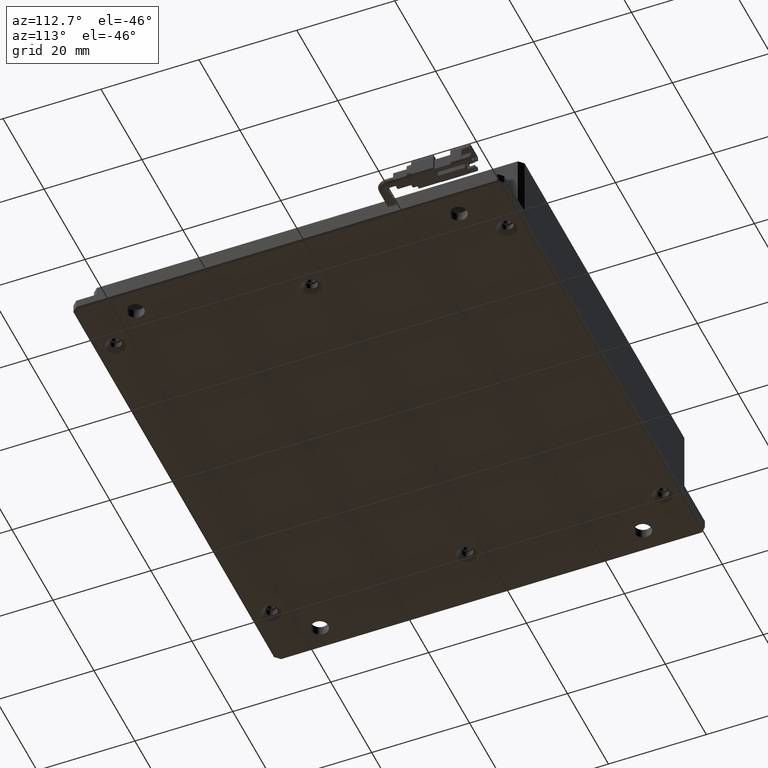
[diagram: clean part render]
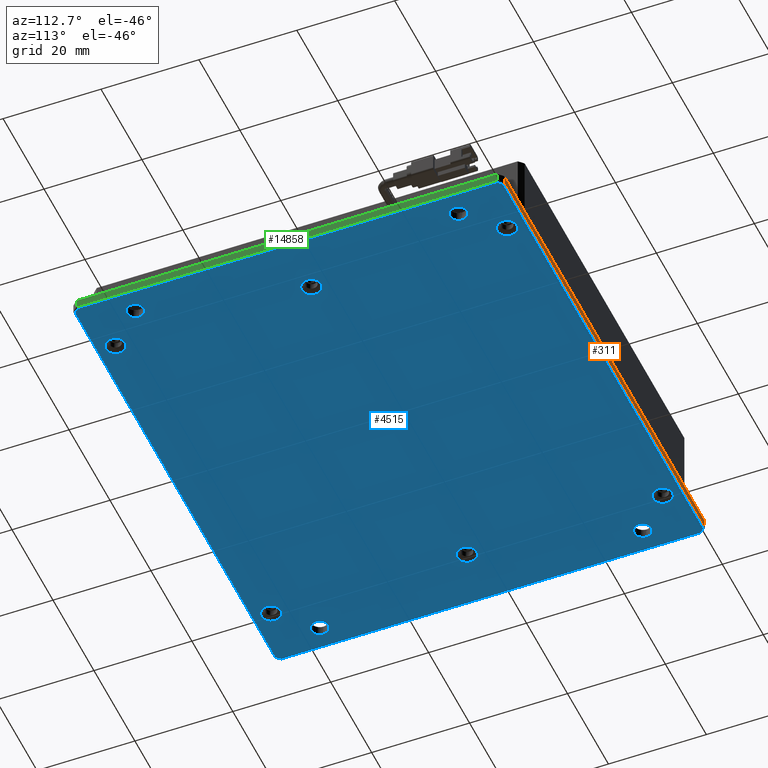
[diagram: same view with three faces highlighted in distinct colors, each labeled with its STEP entity id]
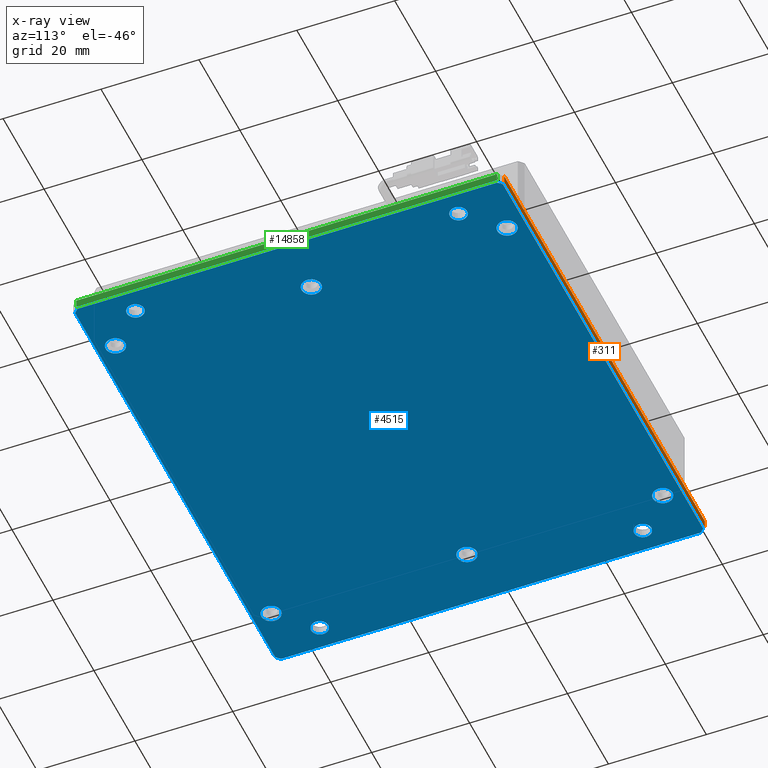
[diagram: x-ray of the same camera — body ghosted, the three highlighted faces saturated]
A machine part, auxiliary view with three faces highlighted in distinct colors.
The next image is the same camera in x-ray (body ghosted, the three faces saturated) — at least one of them is partly hidden behind the body in this view.
Their STEP definitions:

[orange] entity #311 — the highlighted planar face has unit normal (0, -1, 0).
#311 = ADVANCED_FACE ( 'NONE', ( #1137 ), #12971, .F. ) ;
#940 = CARTESIAN_POINT ( 'NONE',  ( -32.94768995799925900, 39.79992363497521500, -4.547577592273199800E-012 ) ) ;
#1137 = FACE_OUTER_BOUND ( 'NONE', #6369, .T. ) ;
#1222 = ORIENTED_EDGE ( 'NONE', *, *, #3665, .T. ) ;
#1947 = LINE ( 'NONE', #5270, #8857 ) ;
#2354 = CARTESIAN_POINT ( 'NONE',  ( -32.94768995799925900, 39.79992363497521500, -1.700000000004553000 ) ) ;
#2643 = DIRECTION ( 'NONE',  ( 0.0000000000000000000, -0.0000000000000000000, -1.000000000000000000 ) ) ;
#3665 = EDGE_CURVE ( 'NONE', #7176, #10799, #15093, .T. ) ;
#3750 = CARTESIAN_POINT ( 'NONE',  ( -32.94768995799925900, 39.79992363497521500, -4.547577592273199800E-012 ) ) ;
#3777 = DIRECTION ( 'NONE',  ( -0.0000000000000000000, -0.0000000000000000000, -1.000000000000000000 ) ) ;
#4901 = VECTOR ( 'NONE', #14723, 1000.000000000000000 ) ;
#5270 = CARTESIAN_POINT ( 'NONE',  ( -31.94768995799925900, 39.79992363497521500, -4.547577592273199800E-012 ) ) ;
#5284 = CARTESIAN_POINT ( 'NONE',  ( 66.05231004200074100, 39.79992363497521500, -1.700000000004552100 ) ) ;
#5477 = CARTESIAN_POINT ( 'NONE',  ( 66.05231004200074100, 39.79992363497522900, -4.547577592273199800E-012 ) ) ;
#6369 = EDGE_LOOP ( 'NONE', ( #10200, #14992, #16774, #1222 ) ) ;
#7176 = VERTEX_POINT ( 'NONE', #8342 ) ;
#7487 = EDGE_CURVE ( 'NONE', #15737, #7176, #11604, .T. ) ;
#8032 = VECTOR ( 'NONE', #13290, 1000.000000000000000 ) ;
#8342 = CARTESIAN_POINT ( 'NONE',  ( 66.05231004200076900, 39.79992363497521500, -4.547577592273199800E-012 ) ) ;
#8554 = LINE ( 'NONE', #2354, #4901 ) ;
#8857 = VECTOR ( 'NONE', #14717, 1000.000000000000000 ) ;
#10200 = ORIENTED_EDGE ( 'NONE', *, *, #16585, .F. ) ;
#10251 = AXIS2_PLACEMENT_3D ( 'NONE', #3750, #10858, #2643 ) ;
#10799 = VERTEX_POINT ( 'NONE', #5284 ) ;
#10858 = DIRECTION ( 'NONE',  ( 0.0000000000000000000, -1.000000000000000000, 0.0000000000000000000 ) ) ;
#11310 = EDGE_CURVE ( 'NONE', #15737, #15522, #1947, .T. ) ;
#11379 = CARTESIAN_POINT ( 'NONE',  ( -31.94768995799925900, 39.79992363497521500, -4.547577592273199800E-012 ) ) ;
#11485 = VECTOR ( 'NONE', #3777, 1000.000000000000000 ) ;
#11604 = LINE ( 'NONE', #940, #8032 ) ;
#12177 = CARTESIAN_POINT ( 'NONE',  ( -31.94768995799925900, 39.79992363497521500, -1.700000000004553400 ) ) ;
#12971 = PLANE ( 'NONE',  #10251 ) ;
#13290 = DIRECTION ( 'NONE',  ( 1.000000000000000000, -0.0000000000000000000, 0.0000000000000000000 ) ) ;
#14717 = DIRECTION ( 'NONE',  ( 0.0000000000000000000, -0.0000000000000000000, -1.000000000000000000 ) ) ;
#14723 = DIRECTION ( 'NONE',  ( 1.000000000000000000, 0.0000000000000000000, 0.0000000000000000000 ) ) ;
#14992 = ORIENTED_EDGE ( 'NONE', *, *, #11310, .F. ) ;
#15093 = LINE ( 'NONE', #5477, #11485 ) ;
#15522 = VERTEX_POINT ( 'NONE', #12177 ) ;
#15737 = VERTEX_POINT ( 'NONE', #11379 ) ;
#16585 = EDGE_CURVE ( 'NONE', #15522, #10799, #8554, .T. ) ;
#16774 = ORIENTED_EDGE ( 'NONE', *, *, #7487, .T. ) ;

[blue] entity #4515 — the highlighted planar face has unit normal (0, 0, -1).
#34 = AXIS2_PLACEMENT_3D ( 'NONE', #5235, #14740, #6628 ) ;
#72 = EDGE_CURVE ( 'NONE', #14501, #15963, #12541, .T. ) ;
#98 = CARTESIAN_POINT ( 'NONE',  ( 53.05231004207031700, -44.20007636502478500, -1.999999999947704300 ) ) ;
#118 = VERTEX_POINT ( 'NONE', #13329 ) ;
#361 = DIRECTION ( 'NONE',  ( -0.7071067811865535700, 0.7071067811865415800, -1.488157472718155900E-014 ) ) ;
#376 = LINE ( 'NONE', #1794, #7359 ) ;
#442 = CARTESIAN_POINT ( 'NONE',  ( -31.82342588928733200, -47.90007636502477300, -2.000000000004545700 ) ) ;
#498 = EDGE_CURVE ( 'NONE', #118, #3270, #16937, .T. ) ;
#502 = ORIENTED_EDGE ( 'NONE', *, *, #15474, .T. ) ;
#505 = CARTESIAN_POINT ( 'NONE',  ( 53.05231004207031700, 35.79992363497522200, -1.999999999947704300 ) ) ;
#593 = ORIENTED_EDGE ( 'NONE', *, *, #15857, .T. ) ;
#642 = DIRECTION ( 'NONE',  ( -1.000000000000000000, 0.0000000000000000000, 0.0000000000000000000 ) ) ;
#750 = VERTEX_POINT ( 'NONE', #6751 ) ;
#773 = CARTESIAN_POINT ( 'NONE',  ( 55.05231004200073400, -44.20007636502478500, -1.999999999947704300 ) ) ;
#820 = EDGE_CURVE ( 'NONE', #3225, #12565, #11738, .T. ) ;
#822 = DIRECTION ( 'NONE',  ( -0.0000000000000000000, -0.0000000000000000000, 1.000000000000000000 ) ) ;
#834 = CARTESIAN_POINT ( 'NONE',  ( 55.05231004200073400, 35.79992363497522200, -1.999999999947704300 ) ) ;
#909 = CARTESIAN_POINT ( 'NONE',  ( -29.69768995799926600, 28.79992363497522900, -2.000000000004547500 ) ) ;
#987 = DIRECTION ( 'NONE',  ( -1.000000000000000000, 0.0000000000000000000, -0.0000000000000000000 ) ) ;
#1045 = CARTESIAN_POINT ( 'NONE',  ( 57.05231004193115800, 35.79992363497522200, -1.999999999947704300 ) ) ;
#1066 = CARTESIAN_POINT ( 'NONE',  ( -27.94768995799927000, 28.79992363497522900, -2.000000000004547500 ) ) ;
#1072 = CARTESIAN_POINT ( 'NONE',  ( -31.82342588928733200, 39.49992363497520400, -2.000000000004547900 ) ) ;
#1114 = FACE_BOUND ( 'NONE', #8154, .T. ) ;
#1139 = CIRCLE ( 'NONE', #9918, 1.999999999930418500 ) ;
#1223 = EDGE_CURVE ( 'NONE', #2054, #12436, #16590, .T. ) ;
#1283 = VECTOR ( 'NONE', #1927, 1000.000000000000000 ) ;
#1313 = AXIS2_PLACEMENT_3D ( 'NONE', #12843, #4666, #14183 ) ;
#1390 = VERTEX_POINT ( 'NONE', #8864 ) ;
#1532 = AXIS2_PLACEMENT_3D ( 'NONE', #15979, #7873, #17328 ) ;
#1591 = CIRCLE ( 'NONE', #16399, 2.000000000009098500 ) ;
#1656 = VERTEX_POINT ( 'NONE', #1045 ) ;
#1794 = CARTESIAN_POINT ( 'NONE',  ( 66.75231004200074400, 38.67565956626328500, -2.000000000004523500 ) ) ;
#1927 = DIRECTION ( 'NONE',  ( 0.7071067811865567900, 0.7071067811865383600, 5.952629890872349900E-015 ) ) ;
#1943 = ORIENTED_EDGE ( 'NONE', *, *, #12255, .T. ) ;
#1982 = CARTESIAN_POINT ( 'NONE',  ( -18.94768995799015700, -44.20007636502478500, -2.000000000004547500 ) ) ;
#2054 = VERTEX_POINT ( 'NONE', #8207 ) ;
#2070 = EDGE_CURVE ( 'NONE', #11036, #4027, #3736, .T. ) ;
#2161 = CIRCLE ( 'NONE', #10544, 1.749999999999998000 ) ;
#2168 = DIRECTION ( 'NONE',  ( -1.000000000000000000, 0.0000000000000000000, 0.0000000000000000000 ) ) ;
#2234 = EDGE_CURVE ( 'NONE', #8017, #3448, #1591, .T. ) ;
#2436 = ORIENTED_EDGE ( 'NONE', *, *, #10452, .T. ) ;
#2443 = DIRECTION ( 'NONE',  ( -1.000000000000000000, 0.0000000000000000000, 0.0000000000000000000 ) ) ;
#2531 = VECTOR ( 'NONE', #14916, 1000.000000000000000 ) ;
#2705 = CARTESIAN_POINT ( 'NONE',  ( 55.05231004200073400, -44.20007636502478500, -1.999999999947704300 ) ) ;
#2714 = EDGE_CURVE ( 'NONE', #3270, #118, #13909, .T. ) ;
#2746 = CIRCLE ( 'NONE', #16473, 2.000000000009098500 ) ;
#3004 = EDGE_CURVE ( 'NONE', #5076, #3769, #15367, .T. ) ;
#3104 = CARTESIAN_POINT ( 'NONE',  ( 63.80231004200073400, -37.20007636502477100, -2.000000000004547500 ) ) ;
#3183 = EDGE_LOOP ( 'NONE', ( #5894, #2436 ) ) ;
#3225 = VERTEX_POINT ( 'NONE', #3679 ) ;
#3270 = VERTEX_POINT ( 'NONE', #5974 ) ;
#3417 = DIRECTION ( 'NONE',  ( -1.000000000000000000, 0.0000000000000000000, -0.0000000000000000000 ) ) ;
#3431 = EDGE_LOOP ( 'NONE', ( #4643, #1943 ) ) ;
#3433 = DIRECTION ( 'NONE',  ( -1.000000000000000000, 0.0000000000000000000, 0.0000000000000000000 ) ) ;
#3448 = VERTEX_POINT ( 'NONE', #1982 ) ;
#3500 = EDGE_CURVE ( 'NONE', #3720, #1656, #14691, .T. ) ;
#3545 = DIRECTION ( 'NONE',  ( -0.0000000000000000000, -0.0000000000000000000, 1.000000000000000000 ) ) ;
#3550 = DIRECTION ( 'NONE',  ( -0.0000000000000000000, -0.0000000000000000000, 1.000000000000000000 ) ) ;
#3612 = CARTESIAN_POINT ( 'NONE',  ( -20.94768995799925200, -4.200076365024784800, -2.000000000004547500 ) ) ;
#3679 = CARTESIAN_POINT ( 'NONE',  ( 65.92804597328883200, 39.49992363497520400, -2.000000000004545700 ) ) ;
#3720 = VERTEX_POINT ( 'NONE', #505 ) ;
#3736 = LINE ( 'NONE', #8585, #17397 ) ;
#3769 = VERTEX_POINT ( 'NONE', #6821 ) ;
#4027 = VERTEX_POINT ( 'NONE', #10135 ) ;
#4101 = DIRECTION ( 'NONE',  ( -1.000000000000000000, 0.0000000000000000000, 0.0000000000000000000 ) ) ;
#4108 = CARTESIAN_POINT ( 'NONE',  ( 66.75231004200074400, -48.20007636502478500, -2.000000000004544400 ) ) ;
#4368 = FACE_OUTER_BOUND ( 'NONE', #7426, .T. ) ;
#4462 = CARTESIAN_POINT ( 'NONE',  ( 57.05231004193115800, -44.20007636502478500, -1.999999999947704300 ) ) ;
#4515 = ADVANCED_FACE ( 'NONE', ( #5253, #15670, #12507, #12085, #8480, #4812, #1114, #15236, #11633, #8055, #4368 ), #5505, .T. ) ;
#4643 = ORIENTED_EDGE ( 'NONE', *, *, #3500, .T. ) ;
#4666 = DIRECTION ( 'NONE',  ( -0.0000000000000000000, -0.0000000000000000000, 1.000000000000000000 ) ) ;
#4812 = FACE_BOUND ( 'NONE', #3431, .T. ) ;
#4881 = CARTESIAN_POINT ( 'NONE',  ( -20.94768995799925500, 35.79992363497520800, -2.000000000004547500 ) ) ;
#4886 = AXIS2_PLACEMENT_3D ( 'NONE', #6408, #6229, #6168 ) ;
#4949 = ORIENTED_EDGE ( 'NONE', *, *, #8103, .F. ) ;
#4977 = LINE ( 'NONE', #7444, #1283 ) ;
#5076 = VERTEX_POINT ( 'NONE', #3104 ) ;
#5216 = VERTEX_POINT ( 'NONE', #98 ) ;
#5235 = CARTESIAN_POINT ( 'NONE',  ( -20.94768995799925500, 35.79992363497520800, -2.000000000004547500 ) ) ;
#5253 = FACE_BOUND ( 'NONE', #9219, .T. ) ;
#5325 = VERTEX_POINT ( 'NONE', #17124 ) ;
#5342 = EDGE_CURVE ( 'NONE', #3769, #5076, #11368, .T. ) ;
#5345 = ORIENTED_EDGE ( 'NONE', *, *, #8532, .T. ) ;
#5399 = ORIENTED_EDGE ( 'NONE', *, *, #17197, .T. ) ;
#5439 = VERTEX_POINT ( 'NONE', #13333 ) ;
#5505 = PLANE ( 'NONE',  #13150 ) ;
#5894 = ORIENTED_EDGE ( 'NONE', *, *, #2234, .T. ) ;
#5974 = CARTESIAN_POINT ( 'NONE',  ( -18.94768995799015000, -4.200076365024784800, -2.000000000004547500 ) ) ;
#6033 = DIRECTION ( 'NONE',  ( -0.0000000000000000000, -0.0000000000000000000, 1.000000000000000000 ) ) ;
#6041 = LINE ( 'NONE', #4108, #9247 ) ;
#6168 = DIRECTION ( 'NONE',  ( -1.000000000000000000, 0.0000000000000000000, 0.0000000000000000000 ) ) ;
#6186 = CIRCLE ( 'NONE', #16371, 1.749999999999998000 ) ;
#6229 = DIRECTION ( 'NONE',  ( 0.0000000000000000000, 0.0000000000000000000, 1.000000000000000000 ) ) ;
#6256 = LINE ( 'NONE', #13564, #2531 ) ;
#6293 = DIRECTION ( 'NONE',  ( -0.0000000000000000000, -0.0000000000000000000, 1.000000000000000000 ) ) ;
#6299 = DIRECTION ( 'NONE',  ( -1.000000000000000000, 0.0000000000000000000, 0.0000000000000000000 ) ) ;
#6408 = CARTESIAN_POINT ( 'NONE',  ( -27.94768995799929100, -37.20007636502477100, -2.000000000004547500 ) ) ;
#6615 = ORIENTED_EDGE ( 'NONE', *, *, #72, .T. ) ;
#6628 = DIRECTION ( 'NONE',  ( -1.000000000000000000, 0.0000000000000000000, 0.0000000000000000000 ) ) ;
#6654 = EDGE_LOOP ( 'NONE', ( #16342, #16207 ) ) ;
#6751 = CARTESIAN_POINT ( 'NONE',  ( -32.64768995799924800, 38.67565956626331300, -2.000000000004545700 ) ) ;
#6821 = CARTESIAN_POINT ( 'NONE',  ( 60.30231004200072700, -37.20007636502477100, -2.000000000004547500 ) ) ;
#6903 = CARTESIAN_POINT ( 'NONE',  ( -32.64768995799924800, -47.07581229631284700, -2.000000000004546600 ) ) ;
#6930 = DIRECTION ( 'NONE',  ( 0.0000000000000000000, 0.0000000000000000000, 1.000000000000000000 ) ) ;
#7070 = CARTESIAN_POINT ( 'NONE',  ( 55.05231004200073400, -4.200076365024784800, -1.999999999947704300 ) ) ;
#7125 = CIRCLE ( 'NONE', #9540, 1.999999999930418500 ) ;
#7324 = AXIS2_PLACEMENT_3D ( 'NONE', #13374, #13528, #13667 ) ;
#7359 = VECTOR ( 'NONE', #361, 999.9999999999998900 ) ;
#7426 = EDGE_LOOP ( 'NONE', ( #9639, #10405, #8341, #12566, #17026, #8449, #17694, #4949 ) ) ;
#7444 = CARTESIAN_POINT ( 'NONE',  ( 65.92804597328880300, -47.90007636502478100, -2.000000000004551000 ) ) ;
#7776 = EDGE_CURVE ( 'NONE', #4027, #10832, #4977, .T. ) ;
#7790 = DIRECTION ( 'NONE',  ( 0.0000000000000000000, 0.0000000000000000000, 1.000000000000000000 ) ) ;
#7799 = VERTEX_POINT ( 'NONE', #11579 ) ;
#7873 = DIRECTION ( 'NONE',  ( 0.0000000000000000000, 0.0000000000000000000, 1.000000000000000000 ) ) ;
#7886 = CARTESIAN_POINT ( 'NONE',  ( -27.94768995799927000, 28.79992363497522900, -2.000000000004547500 ) ) ;
#7943 = CIRCLE ( 'NONE', #11894, 1.999999999930418500 ) ;
#8006 = ORIENTED_EDGE ( 'NONE', *, *, #5342, .T. ) ;
#8017 = VERTEX_POINT ( 'NONE', #9236 ) ;
#8055 = FACE_BOUND ( 'NONE', #10652, .T. ) ;
#8103 = EDGE_CURVE ( 'NONE', #12565, #750, #13487, .T. ) ;
#8147 = VECTOR ( 'NONE', #987, 1000.000000000000000 ) ;
#8154 = EDGE_LOOP ( 'NONE', ( #14756, #9394 ) ) ;
#8207 = CARTESIAN_POINT ( 'NONE',  ( -29.69768995799929100, -37.20007636502477100, -2.000000000004547500 ) ) ;
#8208 = VERTEX_POINT ( 'NONE', #6903 ) ;
#8247 = CIRCLE ( 'NONE', #11881, 2.000000000009098500 ) ;
#8341 = ORIENTED_EDGE ( 'NONE', *, *, #12007, .F. ) ;
#8376 = LINE ( 'NONE', #11581, #15132 ) ;
#8445 = DIRECTION ( 'NONE',  ( -1.000000000000000000, 0.0000000000000000000, 0.0000000000000000000 ) ) ;
#8449 = ORIENTED_EDGE ( 'NONE', *, *, #16078, .F. ) ;
#8480 = FACE_BOUND ( 'NONE', #6654, .T. ) ;
#8509 = AXIS2_PLACEMENT_3D ( 'NONE', #834, #822, #642 ) ;
#8532 = EDGE_CURVE ( 'NONE', #5439, #9242, #2746, .T. ) ;
#8585 = CARTESIAN_POINT ( 'NONE',  ( -32.94768995799925900, -47.90007636502477300, -2.000000000004547500 ) ) ;
#8671 = ORIENTED_EDGE ( 'NONE', *, *, #498, .T. ) ;
#8700 = CIRCLE ( 'NONE', #34, 2.000000000009098500 ) ;
#8864 = CARTESIAN_POINT ( 'NONE',  ( -26.19768995799927000, 28.79992363497522900, -2.000000000004547500 ) ) ;
#9099 = CIRCLE ( 'NONE', #1532, 1.749999999999998000 ) ;
#9120 = CIRCLE ( 'NONE', #16985, 1.999999999930418500 ) ;
#9208 = DIRECTION ( 'NONE',  ( 1.000000000000000000, 0.0000000000000000000, 0.0000000000000000000 ) ) ;
#9219 = EDGE_LOOP ( 'NONE', ( #8671, #10944 ) ) ;
#9236 = CARTESIAN_POINT ( 'NONE',  ( -22.94768995800835400, -44.20007636502478500, -2.000000000004547500 ) ) ;
#9242 = VERTEX_POINT ( 'NONE', #14438 ) ;
#9247 = VECTOR ( 'NONE', #16325, 1000.000000000000000 ) ;
#9251 = DIRECTION ( 'NONE',  ( -1.000000000000000000, 0.0000000000000000000, 0.0000000000000000000 ) ) ;
#9287 = CARTESIAN_POINT ( 'NONE',  ( -26.19768995799929500, -37.20007636502477100, -2.000000000004547500 ) ) ;
#9337 = EDGE_CURVE ( 'NONE', #1390, #10685, #6186, .T. ) ;
#9394 = ORIENTED_EDGE ( 'NONE', *, *, #11245, .T. ) ;
#9478 = VECTOR ( 'NONE', #16037, 1000.000000000000000 ) ;
#9540 = AXIS2_PLACEMENT_3D ( 'NONE', #14391, #6293, #15775 ) ;
#9639 = ORIENTED_EDGE ( 'NONE', *, *, #820, .F. ) ;
#9659 = CIRCLE ( 'NONE', #15754, 1.750000000000001600 ) ;
#9815 = ORIENTED_EDGE ( 'NONE', *, *, #3004, .T. ) ;
#9846 = AXIS2_PLACEMENT_3D ( 'NONE', #16086, #16026, #15727 ) ;
#9894 = EDGE_CURVE ( 'NONE', #5216, #12610, #1139, .T. ) ;
#9918 = AXIS2_PLACEMENT_3D ( 'NONE', #773, #10411, #2168 ) ;
#10060 = CIRCLE ( 'NONE', #1313, 1.999999999930418500 ) ;
#10135 = CARTESIAN_POINT ( 'NONE',  ( 65.92804597328880300, -47.90007636502477300, -2.000000000004548400 ) ) ;
#10405 = ORIENTED_EDGE ( 'NONE', *, *, #15733, .F. ) ;
#10411 = DIRECTION ( 'NONE',  ( -0.0000000000000000000, -0.0000000000000000000, 1.000000000000000000 ) ) ;
#10452 = EDGE_CURVE ( 'NONE', #3448, #8017, #8247, .T. ) ;
#10544 = AXIS2_PLACEMENT_3D ( 'NONE', #1066, #10690, #2443 ) ;
#10641 = CARTESIAN_POINT ( 'NONE',  ( 53.05231004207031700, -4.200076365024784800, -1.999999999947704300 ) ) ;
#10652 = EDGE_LOOP ( 'NONE', ( #15663, #6615 ) ) ;
#10685 = VERTEX_POINT ( 'NONE', #909 ) ;
#10690 = DIRECTION ( 'NONE',  ( 0.0000000000000000000, 0.0000000000000000000, 1.000000000000000000 ) ) ;
#10832 = VERTEX_POINT ( 'NONE', #13497 ) ;
#10944 = ORIENTED_EDGE ( 'NONE', *, *, #2714, .T. ) ;
#11036 = VERTEX_POINT ( 'NONE', #442 ) ;
#11211 = DIRECTION ( 'NONE',  ( 0.0000000000000000000, 0.0000000000000000000, -1.000000000000000000 ) ) ;
#11245 = EDGE_CURVE ( 'NONE', #12436, #2054, #9099, .T. ) ;
#11368 = CIRCLE ( 'NONE', #11439, 1.750000000000001600 ) ;
#11439 = AXIS2_PLACEMENT_3D ( 'NONE', #15897, #7790, #17250 ) ;
#11579 = CARTESIAN_POINT ( 'NONE',  ( 66.75231004200074400, 38.67565956626329900, -2.000000000004534600 ) ) ;
#11581 = CARTESIAN_POINT ( 'NONE',  ( -32.64768995799924800, -48.20007636502478500, -2.000000000004547500 ) ) ;
#11633 = FACE_BOUND ( 'NONE', #15914, .T. ) ;
#11734 = AXIS2_PLACEMENT_3D ( 'NONE', #15112, #3550, #15023 ) ;
#11738 = LINE ( 'NONE', #17096, #8147 ) ;
#11881 = AXIS2_PLACEMENT_3D ( 'NONE', #14138, #6033, #15506 ) ;
#11894 = AXIS2_PLACEMENT_3D ( 'NONE', #7070, #16530, #8445 ) ;
#11988 = CARTESIAN_POINT ( 'NONE',  ( 60.30231004200072700, 28.79992363497521500, -2.000000000004547500 ) ) ;
#12005 = EDGE_CURVE ( 'NONE', #15963, #14501, #9659, .T. ) ;
#12007 = EDGE_CURVE ( 'NONE', #10832, #7799, #6041, .T. ) ;
#12085 = FACE_BOUND ( 'NONE', #17466, .T. ) ;
#12255 = EDGE_CURVE ( 'NONE', #1656, #3720, #10060, .T. ) ;
#12314 = DIRECTION ( 'NONE',  ( -0.0000000000000000000, -0.0000000000000000000, 1.000000000000000000 ) ) ;
#12338 = EDGE_CURVE ( 'NONE', #750, #8208, #8376, .T. ) ;
#12436 = VERTEX_POINT ( 'NONE', #9287 ) ;
#12507 = FACE_BOUND ( 'NONE', #14001, .T. ) ;
#12541 = CIRCLE ( 'NONE', #7324, 1.750000000000001600 ) ;
#12565 = VERTEX_POINT ( 'NONE', #15189 ) ;
#12566 = ORIENTED_EDGE ( 'NONE', *, *, #7776, .F. ) ;
#12610 = VERTEX_POINT ( 'NONE', #4462 ) ;
#12843 = CARTESIAN_POINT ( 'NONE',  ( 55.05231004200073400, 35.79992363497522200, -1.999999999947704300 ) ) ;
#13024 = AXIS2_PLACEMENT_3D ( 'NONE', #3612, #3545, #3433 ) ;
#13150 = AXIS2_PLACEMENT_3D ( 'NONE', #16113, #11211, #3417 ) ;
#13299 = EDGE_CURVE ( 'NONE', #9242, #5439, #8700, .T. ) ;
#13329 = CARTESIAN_POINT ( 'NONE',  ( -22.94768995800835400, -4.200076365024784800, -2.000000000004547500 ) ) ;
#13333 = CARTESIAN_POINT ( 'NONE',  ( -18.94768995799015700, 35.79992363497520800, -2.000000000004547500 ) ) ;
#13374 = CARTESIAN_POINT ( 'NONE',  ( 62.05231004200072700, 28.79992363497521500, -2.000000000004547500 ) ) ;
#13487 = LINE ( 'NONE', #1072, #9478 ) ;
#13497 = CARTESIAN_POINT ( 'NONE',  ( 66.75231004200074400, -47.07581229631284000, -2.000000000004544800 ) ) ;
#13528 = DIRECTION ( 'NONE',  ( 0.0000000000000000000, 0.0000000000000000000, 1.000000000000000000 ) ) ;
#13564 = CARTESIAN_POINT ( 'NONE',  ( -32.64768995799924800, -47.07581229631284700, -2.000000000004544400 ) ) ;
#13565 = CARTESIAN_POINT ( 'NONE',  ( -20.94768995799925500, -44.20007636502478500, -2.000000000004547500 ) ) ;
#13588 = DIRECTION ( 'NONE',  ( -0.0000000000000000000, -0.0000000000000000000, 1.000000000000000000 ) ) ;
#13626 = DIRECTION ( 'NONE',  ( -1.000000000000000000, 0.0000000000000000000, 0.0000000000000000000 ) ) ;
#13667 = DIRECTION ( 'NONE',  ( -1.000000000000000000, 0.0000000000000000000, 0.0000000000000000000 ) ) ;
#13909 = CIRCLE ( 'NONE', #13024, 2.000000000009102100 ) ;
#14001 = EDGE_LOOP ( 'NONE', ( #15609, #5345 ) ) ;
#14138 = CARTESIAN_POINT ( 'NONE',  ( -20.94768995799925500, -44.20007636502478500, -2.000000000004547500 ) ) ;
#14183 = DIRECTION ( 'NONE',  ( -1.000000000000000000, 0.0000000000000000000, 0.0000000000000000000 ) ) ;
#14391 = CARTESIAN_POINT ( 'NONE',  ( 55.05231004200073400, -4.200076365024784800, -1.999999999947704300 ) ) ;
#14398 = DIRECTION ( 'NONE',  ( -0.0000000000000000000, -0.0000000000000000000, 1.000000000000000000 ) ) ;
#14438 = CARTESIAN_POINT ( 'NONE',  ( -22.94768995800835400, 35.79992363497520800, -2.000000000004547500 ) ) ;
#14501 = VERTEX_POINT ( 'NONE', #17651 ) ;
#14577 = EDGE_LOOP ( 'NONE', ( #502, #14689 ) ) ;
#14689 = ORIENTED_EDGE ( 'NONE', *, *, #9337, .T. ) ;
#14691 = CIRCLE ( 'NONE', #8509, 1.999999999930418500 ) ;
#14740 = DIRECTION ( 'NONE',  ( -0.0000000000000000000, -0.0000000000000000000, 1.000000000000000000 ) ) ;
#14756 = ORIENTED_EDGE ( 'NONE', *, *, #1223, .T. ) ;
#14916 = DIRECTION ( 'NONE',  ( 0.7071067811865386900, -0.7071067811865564500, 2.976314945436249100E-015 ) ) ;
#15019 = CARTESIAN_POINT ( 'NONE',  ( 62.05231004200072700, 28.79992363497521500, -2.000000000004547500 ) ) ;
#15023 = DIRECTION ( 'NONE',  ( -1.000000000000000000, 0.0000000000000000000, 0.0000000000000000000 ) ) ;
#15055 = EDGE_CURVE ( 'NONE', #12610, #5216, #9120, .T. ) ;
#15112 = CARTESIAN_POINT ( 'NONE',  ( -20.94768995799925200, -4.200076365024784800, -2.000000000004547500 ) ) ;
#15132 = VECTOR ( 'NONE', #17031, 1000.000000000000000 ) ;
#15189 = CARTESIAN_POINT ( 'NONE',  ( -31.82342588928733200, 39.49992363497520400, -2.000000000004547500 ) ) ;
#15236 = FACE_BOUND ( 'NONE', #14577, .T. ) ;
#15367 = CIRCLE ( 'NONE', #9846, 1.750000000000001600 ) ;
#15474 = EDGE_CURVE ( 'NONE', #10685, #1390, #2161, .T. ) ;
#15506 = DIRECTION ( 'NONE',  ( -1.000000000000000000, 0.0000000000000000000, 0.0000000000000000000 ) ) ;
#15609 = ORIENTED_EDGE ( 'NONE', *, *, #13299, .T. ) ;
#15663 = ORIENTED_EDGE ( 'NONE', *, *, #12005, .T. ) ;
#15670 = FACE_BOUND ( 'NONE', #3183, .T. ) ;
#15727 = DIRECTION ( 'NONE',  ( -1.000000000000000000, 0.0000000000000000000, 0.0000000000000000000 ) ) ;
#15733 = EDGE_CURVE ( 'NONE', #7799, #3225, #376, .T. ) ;
#15754 = AXIS2_PLACEMENT_3D ( 'NONE', #15019, #6930, #16382 ) ;
#15775 = DIRECTION ( 'NONE',  ( -1.000000000000000000, 0.0000000000000000000, 0.0000000000000000000 ) ) ;
#15857 = EDGE_CURVE ( 'NONE', #5325, #16584, #7125, .T. ) ;
#15897 = CARTESIAN_POINT ( 'NONE',  ( 62.05231004200072700, -37.20007636502477100, -2.000000000004547500 ) ) ;
#15914 = EDGE_LOOP ( 'NONE', ( #8006, #9815 ) ) ;
#15963 = VERTEX_POINT ( 'NONE', #11988 ) ;
#15979 = CARTESIAN_POINT ( 'NONE',  ( -27.94768995799929100, -37.20007636502477100, -2.000000000004547500 ) ) ;
#16026 = DIRECTION ( 'NONE',  ( 0.0000000000000000000, 0.0000000000000000000, 1.000000000000000000 ) ) ;
#16037 = DIRECTION ( 'NONE',  ( -0.7071067811865564500, -0.7071067811865386900, 5.301560996558497200E-015 ) ) ;
#16078 = EDGE_CURVE ( 'NONE', #8208, #11036, #6256, .T. ) ;
#16086 = CARTESIAN_POINT ( 'NONE',  ( 62.05231004200072700, -37.20007636502477100, -2.000000000004547500 ) ) ;
#16113 = CARTESIAN_POINT ( 'NONE',  ( -32.94768995799925900, 39.79992363497521500, -2.000000000004547500 ) ) ;
#16207 = ORIENTED_EDGE ( 'NONE', *, *, #15055, .T. ) ;
#16325 = DIRECTION ( 'NONE',  ( 0.0000000000000000000, 1.000000000000000000, 0.0000000000000000000 ) ) ;
#16342 = ORIENTED_EDGE ( 'NONE', *, *, #9894, .T. ) ;
#16371 = AXIS2_PLACEMENT_3D ( 'NONE', #7886, #17345, #9251 ) ;
#16382 = DIRECTION ( 'NONE',  ( -1.000000000000000000, 0.0000000000000000000, 0.0000000000000000000 ) ) ;
#16399 = AXIS2_PLACEMENT_3D ( 'NONE', #13565, #13588, #13626 ) ;
#16473 = AXIS2_PLACEMENT_3D ( 'NONE', #4881, #14398, #6299 ) ;
#16530 = DIRECTION ( 'NONE',  ( -0.0000000000000000000, -0.0000000000000000000, 1.000000000000000000 ) ) ;
#16584 = VERTEX_POINT ( 'NONE', #10641 ) ;
#16590 = CIRCLE ( 'NONE', #4886, 1.749999999999998000 ) ;
#16937 = CIRCLE ( 'NONE', #11734, 2.000000000009102100 ) ;
#16985 = AXIS2_PLACEMENT_3D ( 'NONE', #2705, #12314, #4101 ) ;
#17026 = ORIENTED_EDGE ( 'NONE', *, *, #2070, .F. ) ;
#17031 = DIRECTION ( 'NONE',  ( -0.0000000000000000000, -1.000000000000000000, -0.0000000000000000000 ) ) ;
#17096 = CARTESIAN_POINT ( 'NONE',  ( -32.94768995799925900, 39.49992363497520400, -2.000000000004547500 ) ) ;
#17124 = CARTESIAN_POINT ( 'NONE',  ( 57.05231004193115800, -4.200076365024784800, -1.999999999947704300 ) ) ;
#17197 = EDGE_CURVE ( 'NONE', #16584, #5325, #7943, .T. ) ;
#17250 = DIRECTION ( 'NONE',  ( -1.000000000000000000, 0.0000000000000000000, 0.0000000000000000000 ) ) ;
#17328 = DIRECTION ( 'NONE',  ( -1.000000000000000000, 0.0000000000000000000, 0.0000000000000000000 ) ) ;
#17345 = DIRECTION ( 'NONE',  ( 0.0000000000000000000, 0.0000000000000000000, 1.000000000000000000 ) ) ;
#17397 = VECTOR ( 'NONE', #9208, 1000.000000000000000 ) ;
#17466 = EDGE_LOOP ( 'NONE', ( #5399, #593 ) ) ;
#17651 = CARTESIAN_POINT ( 'NONE',  ( 63.80231004200073400, 28.79992363497521500, -2.000000000004547500 ) ) ;
#17694 = ORIENTED_EDGE ( 'NONE', *, *, #12338, .F. ) ;

[green] entity #14858 — the highlighted planar face has unit normal (-1, 0, 0).
#808 = EDGE_CURVE ( 'NONE', #6775, #2137, #1657, .T. ) ;
#888 = EDGE_LOOP ( 'NONE', ( #11376, #10603, #17313, #3593 ) ) ;
#1657 = LINE ( 'NONE', #2116, #12171 ) ;
#2050 = CARTESIAN_POINT ( 'NONE',  ( 67.05231004200074100, -48.20007636502478500, -4.547577592273199800E-012 ) ) ;
#2116 = CARTESIAN_POINT ( 'NONE',  ( 67.05231004200074100, -47.20007636502479900, -4.547577592273199800E-012 ) ) ;
#2137 = VERTEX_POINT ( 'NONE', #10079 ) ;
#2337 = LINE ( 'NONE', #5639, #9252 ) ;
#2780 = DIRECTION ( 'NONE',  ( 0.0000000000000000000, 0.0000000000000000000, 1.000000000000000000 ) ) ;
#2884 = DIRECTION ( 'NONE',  ( -0.0000000000000000000, -1.000000000000000000, -0.0000000000000000000 ) ) ;
#3453 = DIRECTION ( 'NONE',  ( 0.0000000000000000000, 0.0000000000000000000, 1.000000000000000000 ) ) ;
#3583 = VERTEX_POINT ( 'NONE', #14526 ) ;
#3593 = ORIENTED_EDGE ( 'NONE', *, *, #808, .F. ) ;
#3924 = DIRECTION ( 'NONE',  ( -0.0000000000000000000, -0.0000000000000000000, -1.000000000000000000 ) ) ;
#4790 = PLANE ( 'NONE',  #12659 ) ;
#5639 = CARTESIAN_POINT ( 'NONE',  ( 67.05231004200074100, -48.20007636502478500, -1.700000000004553000 ) ) ;
#5959 = CARTESIAN_POINT ( 'NONE',  ( 67.05231004200074100, -47.20007636502479900, -1.700000000004553400 ) ) ;
#6026 = LINE ( 'NONE', #9698, #16405 ) ;
#6775 = VERTEX_POINT ( 'NONE', #5959 ) ;
#7018 = DIRECTION ( 'NONE',  ( -0.0000000000000000000, -1.000000000000000000, 0.0000000000000000000 ) ) ;
#8240 = EDGE_CURVE ( 'NONE', #15651, #6775, #2337, .T. ) ;
#9252 = VECTOR ( 'NONE', #7018, 1000.000000000000000 ) ;
#9459 = EDGE_CURVE ( 'NONE', #3583, #15651, #17632, .T. ) ;
#9698 = CARTESIAN_POINT ( 'NONE',  ( 67.05231004200074100, 39.79992363497521500, -4.547577592273199800E-012 ) ) ;
#10079 = CARTESIAN_POINT ( 'NONE',  ( 67.05231004200074100, -47.20007636502479900, -4.547577592273199800E-012 ) ) ;
#10603 = ORIENTED_EDGE ( 'NONE', *, *, #9459, .F. ) ;
#11155 = CARTESIAN_POINT ( 'NONE',  ( 67.05231004200074100, 38.79992363497520800, -1.700000000004544500 ) ) ;
#11376 = ORIENTED_EDGE ( 'NONE', *, *, #8240, .F. ) ;
#11643 = DIRECTION ( 'NONE',  ( -1.000000000000000000, 0.0000000000000000000, 0.0000000000000000000 ) ) ;
#12171 = VECTOR ( 'NONE', #2780, 1000.000000000000000 ) ;
#12659 = AXIS2_PLACEMENT_3D ( 'NONE', #2050, #11643, #3453 ) ;
#14008 = VECTOR ( 'NONE', #3924, 1000.000000000000000 ) ;
#14526 = CARTESIAN_POINT ( 'NONE',  ( 67.05231004200074100, 38.79992363497520800, -4.547577592273199800E-012 ) ) ;
#14858 = ADVANCED_FACE ( 'NONE', ( #15026 ), #4790, .F. ) ;
#15026 = FACE_OUTER_BOUND ( 'NONE', #888, .T. ) ;
#15651 = VERTEX_POINT ( 'NONE', #11155 ) ;
#16405 = VECTOR ( 'NONE', #2884, 1000.000000000000000 ) ;
#16741 = EDGE_CURVE ( 'NONE', #3583, #2137, #6026, .T. ) ;
#17313 = ORIENTED_EDGE ( 'NONE', *, *, #16741, .T. ) ;
#17471 = CARTESIAN_POINT ( 'NONE',  ( 67.05231004200074100, 38.79992363497520800, -4.547577592273199800E-012 ) ) ;
#17632 = LINE ( 'NONE', #17471, #14008 ) ;